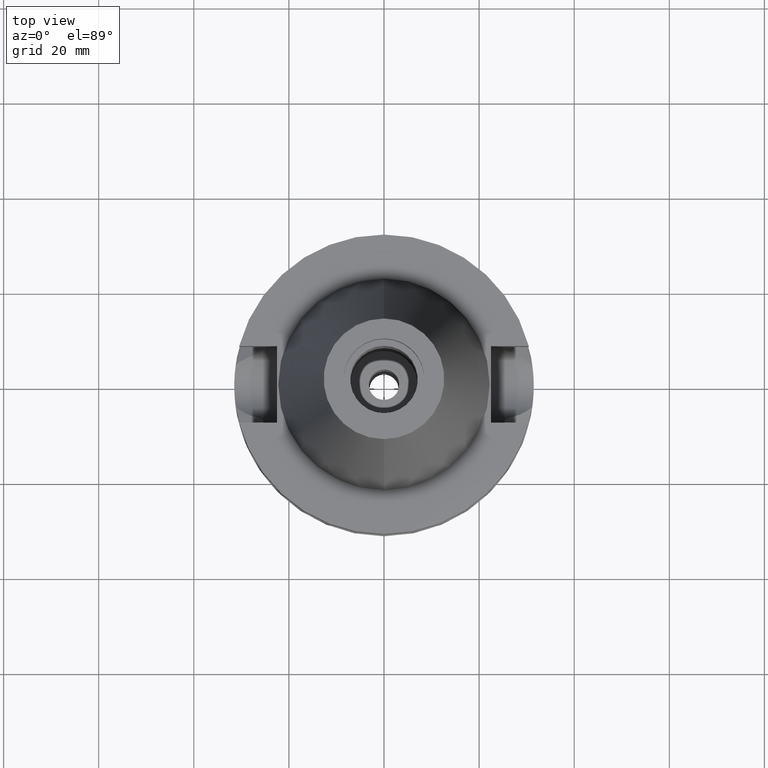
[diagram: clean part render]
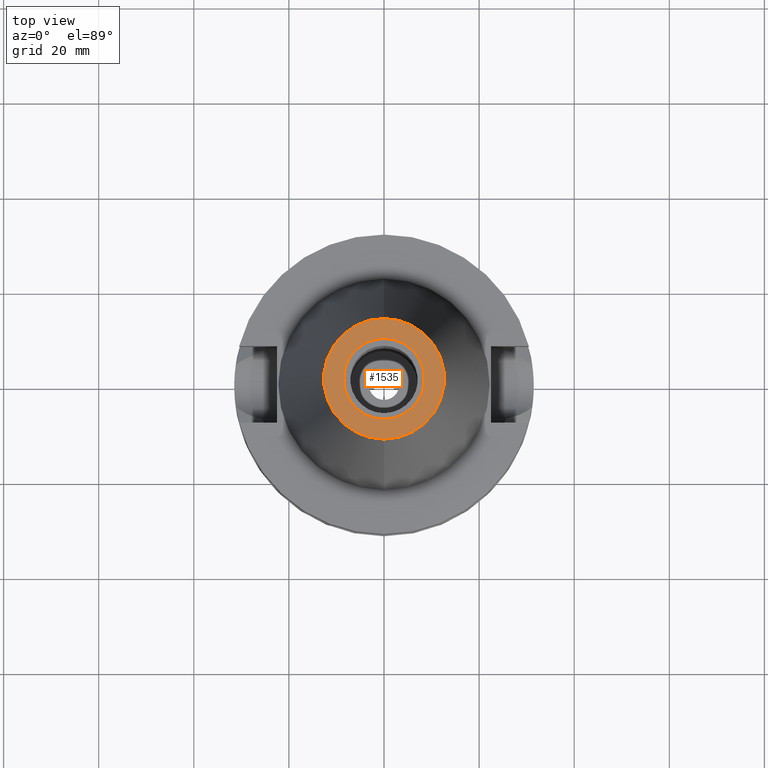
[diagram: same view with one face highlighted and labeled with its STEP entity id]
A machine part, top view. The second image highlights one B-rep face of the part: STEP entity #1535.
In plain terms, the highlighted planar face has unit normal (0, 0, -1).
Its self-contained STEP definition (entity closure, byte-faithful):
#72 = VERTEX_POINT ( 'NONE', #890 ) ;
#173 = CARTESIAN_POINT ( 'NONE',  ( 0.0000000000000000000, 2.099901866497999886E-14, 65.40000000000000568 ) ) ;
#179 = CIRCLE ( 'NONE', #1224, 12.68766899429999917 ) ;
#193 = VERTEX_POINT ( 'NONE', #1843 ) ;
#226 = PLANE ( 'NONE',  #1826 ) ;
#231 = DIRECTION ( 'NONE',  ( 0.0000000000000000000, -1.000000000000000000, 0.0000000000000000000 ) ) ;
#427 = DIRECTION ( 'NONE',  ( 0.0000000000000000000, -1.000000000000000000, 0.0000000000000000000 ) ) ;
#532 = DIRECTION ( 'NONE',  ( 0.0000000000000000000, -1.000000000000000000, 0.0000000000000000000 ) ) ;
#533 = CIRCLE ( 'NONE', #1145, 12.68766899429999917 ) ;
#548 = VERTEX_POINT ( 'NONE', #2002 ) ;
#662 = DIRECTION ( 'NONE',  ( 0.0000000000000000000, 0.0000000000000000000, -1.000000000000000000 ) ) ;
#868 = DIRECTION ( 'NONE',  ( 0.0000000000000000000, 1.000000000000000000, 0.0000000000000000000 ) ) ;
#884 = EDGE_CURVE ( 'NONE', #1499, #193, #179, .T. ) ;
#890 = CARTESIAN_POINT ( 'NONE',  ( 0.0000000000000000000, -8.500000000000000000, 65.40000000000000568 ) ) ;
#920 = EDGE_CURVE ( 'NONE', #72, #548, #2769, .T. ) ;
#927 = DIRECTION ( 'NONE',  ( 0.0000000000000000000, 0.0000000000000000000, 1.000000000000000000 ) ) ;
#997 = ORIENTED_EDGE ( 'NONE', *, *, #1969, .F. ) ;
#1127 = AXIS2_PLACEMENT_3D ( 'NONE', #2514, #927, #231 ) ;
#1145 = AXIS2_PLACEMENT_3D ( 'NONE', #2330, #1885, #532 ) ;
#1224 = AXIS2_PLACEMENT_3D ( 'NONE', #1481, #662, #2749 ) ;
#1443 = ORIENTED_EDGE ( 'NONE', *, *, #920, .F. ) ;
#1481 = CARTESIAN_POINT ( 'NONE',  ( 0.0000000000000000000, 1.625106302469000024E-14, 65.40000000000000568 ) ) ;
#1499 = VERTEX_POINT ( 'NONE', #1835 ) ;
#1531 = ORIENTED_EDGE ( 'NONE', *, *, #884, .F. ) ;
#1535 = ADVANCED_FACE ( 'NONE', ( #1847, #2294 ), #226, .F. ) ;
#1636 = CIRCLE ( 'NONE', #2265, 8.500000000000000000 ) ;
#1826 = AXIS2_PLACEMENT_3D ( 'NONE', #2755, #2255, #427 ) ;
#1835 = CARTESIAN_POINT ( 'NONE',  ( 0.0000000000000000000, 12.68766899429999917, 65.40000000000000568 ) ) ;
#1843 = CARTESIAN_POINT ( 'NONE',  ( 0.0000000000000000000, -12.68766899429999917, 65.40000000000000568 ) ) ;
#1847 = FACE_OUTER_BOUND ( 'NONE', #2327, .T. ) ;
#1874 = EDGE_LOOP ( 'NONE', ( #997, #1443 ) ) ;
#1885 = DIRECTION ( 'NONE',  ( 0.0000000000000000000, 0.0000000000000000000, -1.000000000000000000 ) ) ;
#1969 = EDGE_CURVE ( 'NONE', #548, #72, #1636, .T. ) ;
#2002 = CARTESIAN_POINT ( 'NONE',  ( 0.0000000000000000000, 8.500000000000000000, 65.40000000000000568 ) ) ;
#2255 = DIRECTION ( 'NONE',  ( 0.0000000000000000000, 0.0000000000000000000, -1.000000000000000000 ) ) ;
#2259 = DIRECTION ( 'NONE',  ( 0.0000000000000000000, 0.0000000000000000000, 1.000000000000000000 ) ) ;
#2265 = AXIS2_PLACEMENT_3D ( 'NONE', #173, #2259, #868 ) ;
#2294 = FACE_BOUND ( 'NONE', #1874, .T. ) ;
#2327 = EDGE_LOOP ( 'NONE', ( #1531, #2897 ) ) ;
#2330 = CARTESIAN_POINT ( 'NONE',  ( 0.0000000000000000000, 1.625106302469000024E-14, 65.40000000000000568 ) ) ;
#2477 = EDGE_CURVE ( 'NONE', #193, #1499, #533, .T. ) ;
#2514 = CARTESIAN_POINT ( 'NONE',  ( 0.0000000000000000000, 2.099901866497999886E-14, 65.40000000000000568 ) ) ;
#2749 = DIRECTION ( 'NONE',  ( 0.0000000000000000000, 1.000000000000000000, 0.0000000000000000000 ) ) ;
#2755 = CARTESIAN_POINT ( 'NONE',  ( 0.0000000000000000000, 2.025565805790000122E-14, 65.40000000000000568 ) ) ;
#2769 = CIRCLE ( 'NONE', #1127, 8.500000000000000000 ) ;
#2897 = ORIENTED_EDGE ( 'NONE', *, *, #2477, .F. ) ;